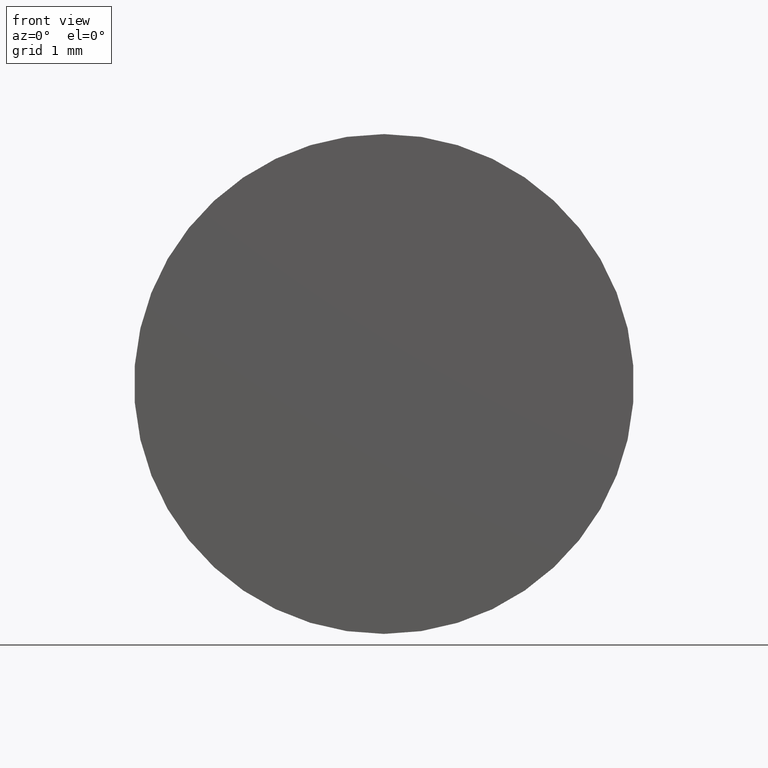
[diagram: clean part render]
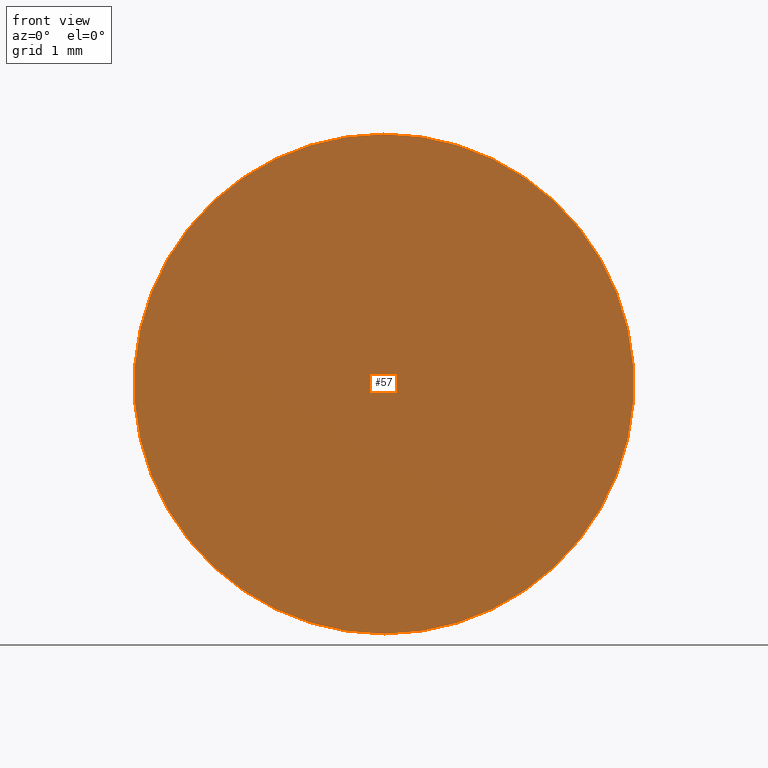
[diagram: same view with one face highlighted and labeled with its STEP entity id]
A machine part, front view. The second image highlights one B-rep face of the part: STEP entity #57.
In plain terms, the highlighted planar face has unit normal (0, -1, 0).
Its self-contained STEP definition (entity closure, byte-faithful):
#8 = AXIS2_PLACEMENT_3D ( 'NONE', #21, #68, #83 ) ;
#13 = CIRCLE ( 'NONE', #109, 3.000000000000000000 ) ;
#15 = ORIENTED_EDGE ( 'NONE', *, *, #46, .F. ) ;
#16 = ORIENTED_EDGE ( 'NONE', *, *, #184, .F. ) ;
#21 = CARTESIAN_POINT ( 'NONE',  ( 0.000000000000000000, -1.836970198721029934E-16, 0.000000000000000000 ) ) ;
#25 = DIRECTION ( 'NONE',  ( -0.000000000000000000, 1.000000000000000000, -0.000000000000000000 ) ) ;
#46 = EDGE_CURVE ( 'NONE', #189, #187, #13, .T. ) ;
#55 = DIRECTION ( 'NONE',  ( 0.000000000000000000, 0.000000000000000000, 1.000000000000000000 ) ) ;
#57 = ADVANCED_FACE ( 'NONE', ( #120 ), #132, .T. ) ;
#68 = DIRECTION ( 'NONE',  ( 0.000000000000000000, -1.000000000000000000, 0.000000000000000000 ) ) ;
#71 = CARTESIAN_POINT ( 'NONE',  ( 0.000000000000000000, -4.336808689942017736E-16, 3.000000000000000000 ) ) ;
#83 = DIRECTION ( 'NONE',  ( 0.000000000000000000, -0.000000000000000000, -1.000000000000000000 ) ) ;
#85 = DIRECTION ( 'NONE',  ( 0.000000000000000000, 0.000000000000000000, 1.000000000000000000 ) ) ;
#94 = CIRCLE ( 'NONE', #126, 3.000000000000000000 ) ;
#96 = EDGE_LOOP ( 'NONE', ( #16, #15 ) ) ;
#109 = AXIS2_PLACEMENT_3D ( 'NONE', #176, #118, #55 ) ;
#118 = DIRECTION ( 'NONE',  ( -0.000000000000000000, 1.000000000000000000, -0.000000000000000000 ) ) ;
#119 = CARTESIAN_POINT ( 'NONE',  ( 3.673940397442059868E-16, -4.336808689942017736E-16, -3.000000000000000000 ) ) ;
#120 = FACE_OUTER_BOUND ( 'NONE', #96, .T. ) ;
#126 = AXIS2_PLACEMENT_3D ( 'NONE', #147, #25, #85 ) ;
#132 = PLANE ( 'NONE',  #8 ) ;
#147 = CARTESIAN_POINT ( 'NONE',  ( 0.000000000000000000, -4.336808689942017736E-16, 0.000000000000000000 ) ) ;
#176 = CARTESIAN_POINT ( 'NONE',  ( 0.000000000000000000, -4.336808689942017736E-16, 0.000000000000000000 ) ) ;
#184 = EDGE_CURVE ( 'NONE', #187, #189, #94, .T. ) ;
#187 = VERTEX_POINT ( 'NONE', #71 ) ;
#189 = VERTEX_POINT ( 'NONE', #119 ) ;